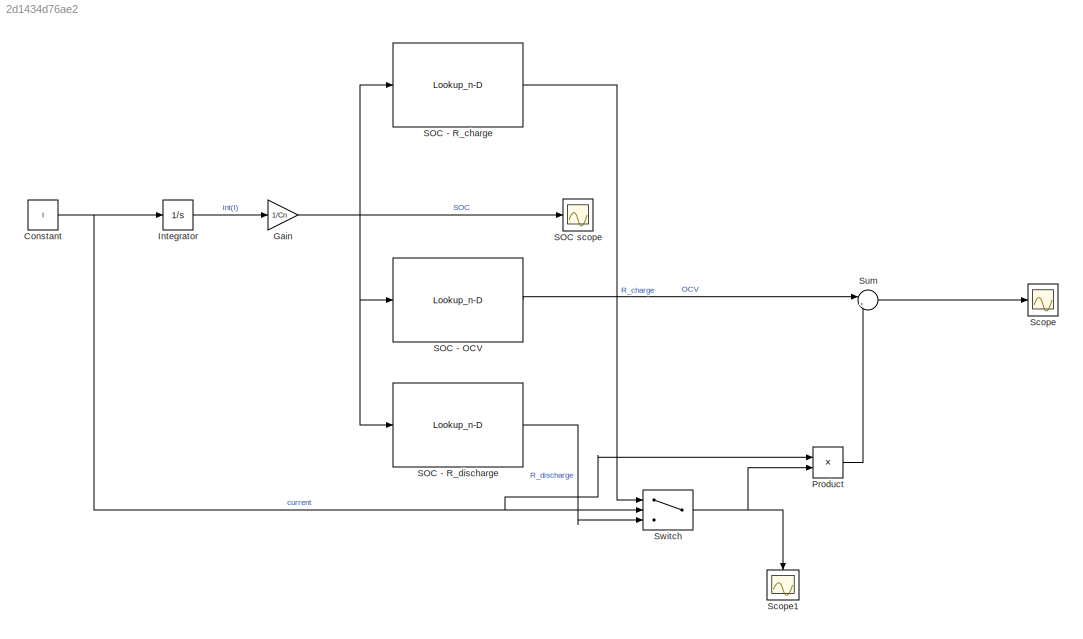
MODEL slx_2d1434d76ae2
KIND model
CONFIG AbsTol = auto
CONFIG EnableMultiTasking = off
CONFIG FixedStep = auto
CONFIG MaxStep = auto
CONFIG MinStep = auto
CONFIG RelTol = 1e-3
CONFIG SampleTimeConstraint = Unconstrained
CONFIG Solver = VariableStepAuto
CONFIG SolverName = VariableStepAuto
CONFIG StartTime = 0.0
CONFIG StopTime = Sim_time
BLOCK [Constant] Constant
  Value = I
BLOCK [Gain] Gain
  Gain = 1/Cn
BLOCK [Integrator] Integrator
  Ports = [1, 1]
BLOCK [Product] Product
  Ports = [2, 1]
BLOCK [Lookup_n-D] SOC - OCV
  BreakpointsForDimension1 = SOC
  InternalRulePriority = Speed
  NumberOfTableDimensions = 1
  Ports = [1, 1]
  RndMeth = Simplest
  Table = OCV
BLOCK [Lookup_n-D] SOC - R_charge
  BreakpointsForDimension1 = SOC
  InternalRulePriority = Speed
  NumberOfTableDimensions = 1
  Ports = [1, 1]
  RndMeth = Simplest
  Table = R_charge
BLOCK [Lookup_n-D] SOC - R_discharge
  BreakpointsForDimension1 = SOC
  InternalRulePriority = Speed
  NumberOfTableDimensions = 1
  Ports = [1, 1]
  RndMeth = Simplest
  Table = R_discharge
BLOCK [Scope] SOC scope
  Floating = off
  NumInputPorts = 1
  Ports = [1]
  ScopeSpecificationString = Simulink.scopes.TimeScopeBlockCfg('CurrentConfiguration', extmgr.ConfigurationSet(extmgr.Configuration('Core','General UI',true),extmgr.Configuration('Core','Source UI',true),extmgr.Configuration('Sources','WiredSimulink',true,'DataLoggingVariableName','ScopeData1'),extmgr.Configuration('Visuals','Time Domain',true,'SerializedDisplays',{struct('MinYLimReal','-0.125','MaxYLimReal','1.125','YLabelRe...<+1379ch>
BLOCK [Scope] Scope
  Floating = off
  NumInputPorts = 1
  Ports = [1]
  ScopeSpecificationString = Simulink.scopes.TimeScopeBlockCfg('CurrentConfiguration', extmgr.ConfigurationSet(extmgr.Configuration('Core','General UI',true),extmgr.Configuration('Core','Source UI',true),extmgr.Configuration('Sources','WiredSimulink',true,'DataLoggingVariableName','ScopeData1'),extmgr.Configuration('Visuals','Time Domain',true,'SerializedDisplays',{struct('MinYLimReal','2.54318','MaxYLimReal','4.79138','YLabe...<+1360ch>
BLOCK [Scope] Scope1
  Floating = off
  NameLocation = left
  NumInputPorts = 1
  Ports = [1]
  ScopeSpecificationString = Simulink.scopes.TimeScopeBlockCfg('CurrentConfiguration', extmgr.ConfigurationSet(extmgr.Configuration('Core','General UI',true),extmgr.Configuration('Core','Source UI',true),extmgr.Configuration('Sources','WiredSimulink',true,'DataLoggingVariableName','ScopeData2'),extmgr.Configuration('Visuals','Time Domain',true,'SerializedDisplays',{struct('MinYLimReal','0.06808','MaxYLimReal','0.17021','YLabe...<+1363ch>
BLOCK [Sum] Sum
  Inputs = |++
  Ports = [2, 1]
BLOCK [Switch] Switch
  Criteria = u2 > Threshold
  InputSameDT = off
  SaturateOnIntegerOverflow = off
NET Constant:1 -> Integrator:1, Product:1, Switch:2
NET Gain:1 -> SOC - OCV:1, SOC - R_charge:1, SOC - R_discharge:1, SOC scope:1
LINE Integrator:1 -> Gain:1
LINE Product:1 -> Sum:2
LINE SOC - OCV:1 -> Sum:1
LINE SOC - R_charge:1 -> Switch:1
LINE SOC - R_discharge:1 -> Switch:3
LINE Sum:1 -> Scope:1
NET Switch:1 -> Product:2, Scope1:1
note: NET lines group one-source signal fan-out (src -> all destinations, sorted); 1:1 wires keep LINE
